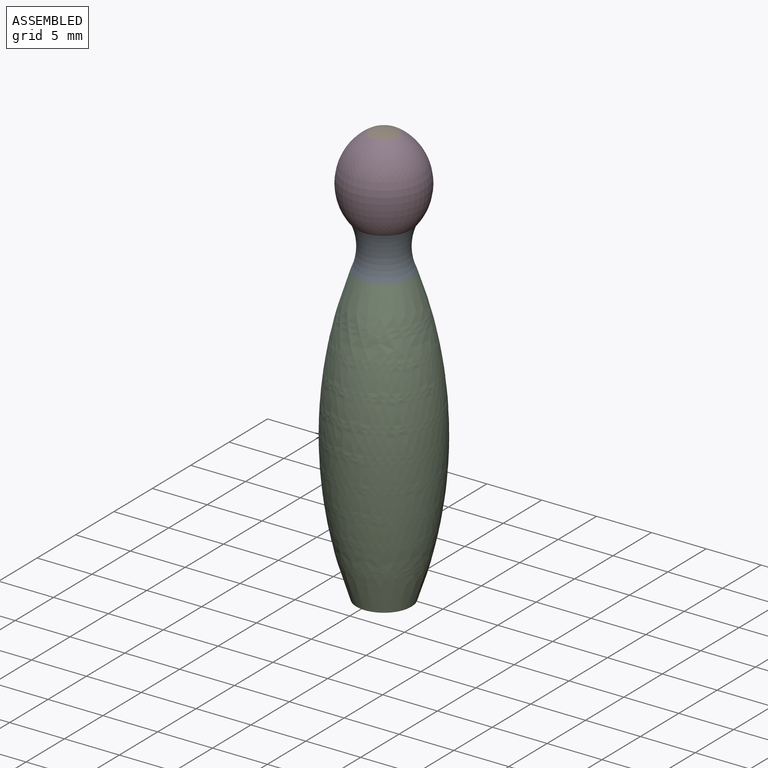
[diagram: assembled view]
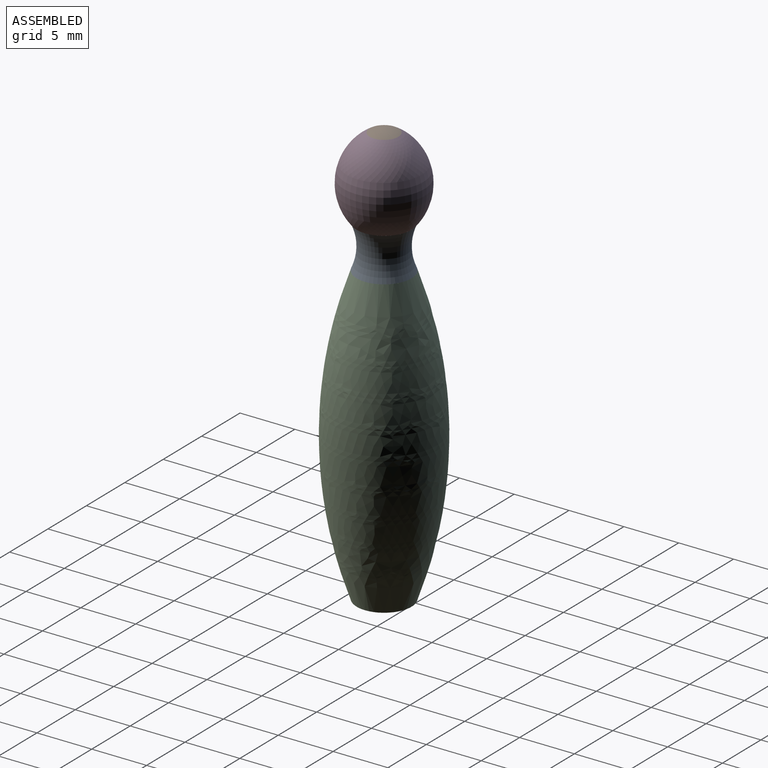
[diagram: assembled view, second angle]
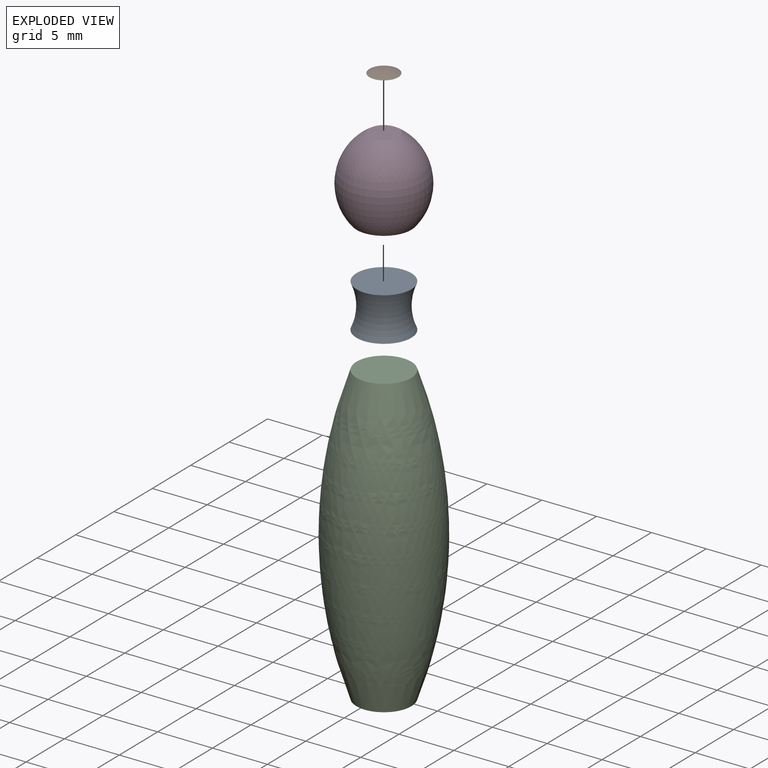
[diagram: exploded view]
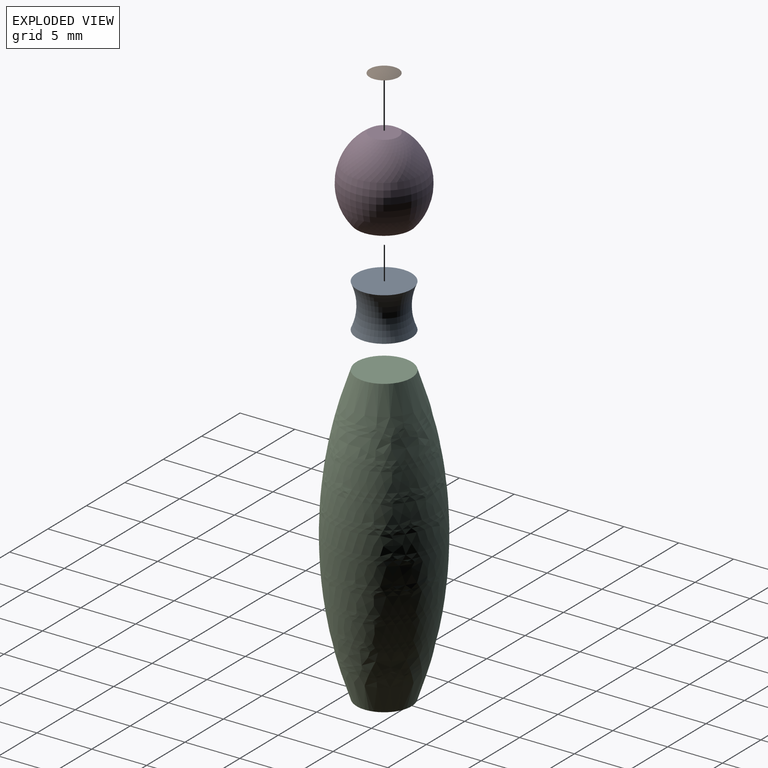
[diagram: exploded view, second angle]
ASSEMBLY  parts=4 mates=3
PART A: 3 faces, bbox 7.5x7.5x6.9 mm
  f0: plane 5x5mm, normal (0,0,-1), area 19.6mm2, adj f1
  f1: torus R=6.93mm, axis (0,0,-1), area 57.3mm2, adj f0,f2
  f2: plane 5x5mm, normal (0,0,1), area 19.6mm2, adj f1
PART B: 2 faces, bbox 2.6x2.6x0.3 mm
  f0: plane 2.62x2.62mm, normal (0,0,-1), area 5.4mm2, adj f1
  f1: revolved ~2.62x2.62mm, area 5.6mm2, adj f0
PART C: 3 faces, bbox 9.8x9.8x27.1 mm
  f0: plane 5x5mm, normal (0,0,-1), area 19.6mm2, adj f1
  f1: revolved ~27.06x9.75mm, area 708mm2, adj f0,f2
  f2: plane 5x5mm, normal (0,0,1), area 19.6mm2, adj f1
PART D: 3 faces, bbox 7.4x7.4x7.4 mm
  f0: plane 5x5mm, normal (0,0,-1), area 19.6mm2, adj f1
  f1: revolved ~7.4x7.4mm, area 162.7mm2, adj f0,f2
  f2: plane 2.62x2.62mm, normal (0,0,1), area 5.4mm2, adj f1
PLACE A t=(38.86,23.48,-19.47)mm
PLACE B t=(65.96,23.48,-9.46)mm
PLACE C t=(53.6,23.48,0.47)mm
PLACE D t=(53.6,23.48,2.47)mm
MATE fastened D.f0 <-> A.f1  axis (0,0,-1) through (1.19,23.48,35.4)mm
MATE fastened D.f2 <-> B.f0  axis (0,0,-1) through (1.19,23.48,42.75)mm
MATE fastened C.f2 <-> A.f1  axis (0,0,1) through (1.19,23.48,31.4)mm
